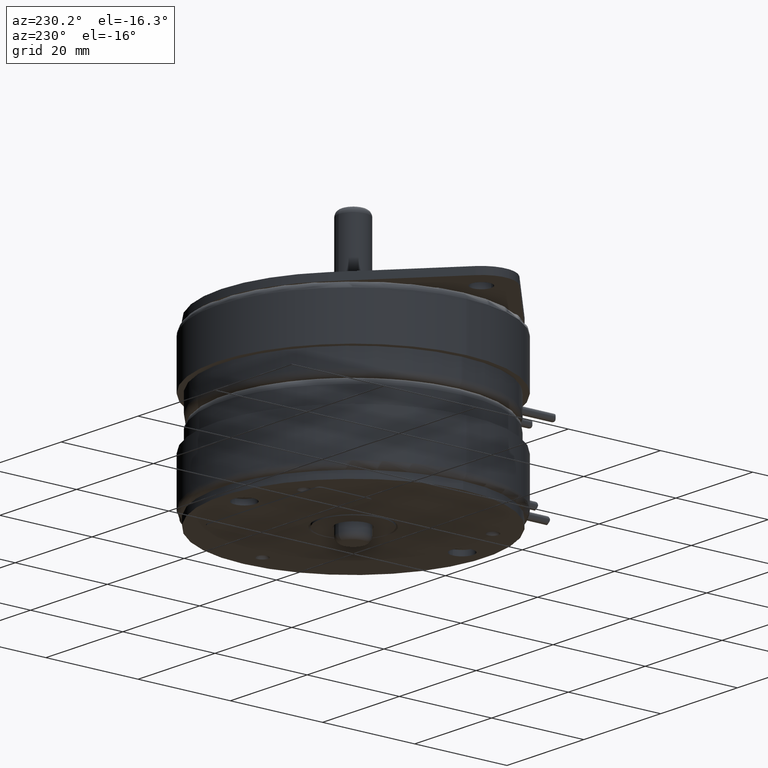
[diagram: clean part render]
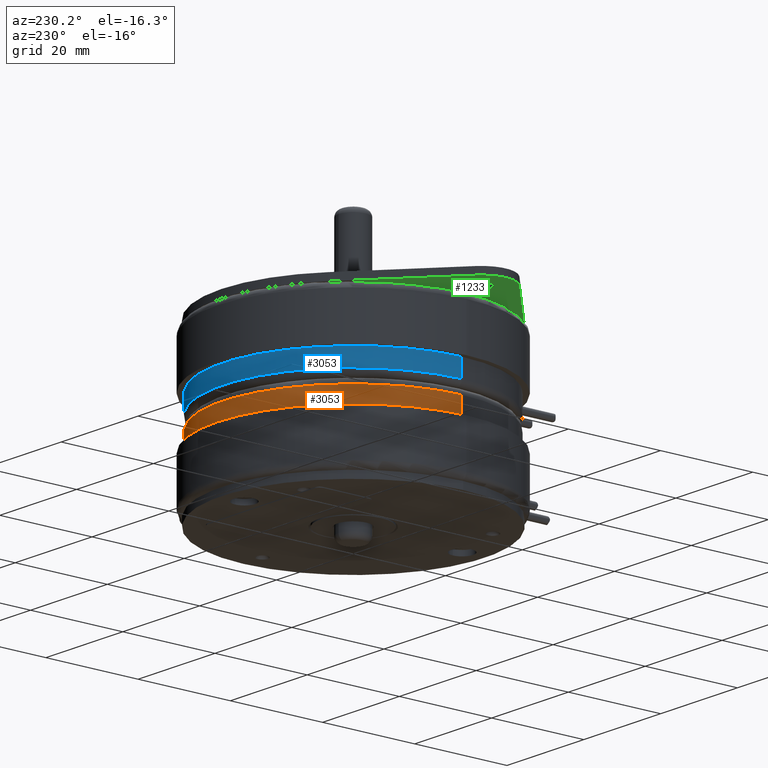
[diagram: same view with three faces highlighted in distinct colors, each labeled with its STEP entity id]
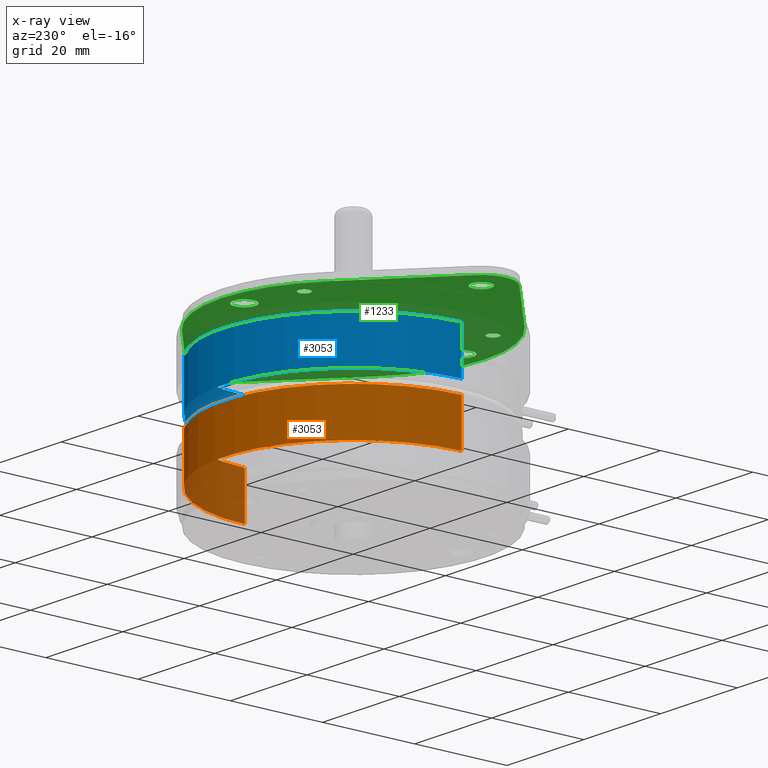
[diagram: x-ray of the same camera — body ghosted, the three highlighted faces saturated]
A machine part, auxiliary view with three faces highlighted in distinct colors.
The next image is the same camera in x-ray (body ghosted, the three faces saturated) — at least one of them is partly hidden behind the body in this view.
Their STEP definitions:

[orange] entity #3053 — the highlighted cylindrical surface (partial cylindrical patch) has radius 28.2575 mm, axis along (0, 0, -1).
#2540=CARTESIAN_POINT('',(-5.5E-2,0.E0,0.E0));
#2541=DIRECTION('',(-1.E0,0.E0,0.E0));
#2542=DIRECTION('',(0.E0,0.E0,1.E0));
#2543=AXIS2_PLACEMENT_3D('',#2540,#2541,#2542);
#2605=DIRECTION('',(1.E0,0.E0,0.E0));
#2606=VECTOR('',#2605,3.85E-1);
#2607=CARTESIAN_POINT('',(-4.4E-1,0.E0,1.1125E0));
#2608=LINE('',#2607,#2606);
#2686=CARTESIAN_POINT('',(-4.4E-1,0.E0,0.E0));
#2687=DIRECTION('',(1.E0,0.E0,0.E0));
#2688=DIRECTION('',(0.E0,0.E0,-1.E0));
#2689=AXIS2_PLACEMENT_3D('',#2686,#2687,#2688);
#2700=DIRECTION('',(1.E0,0.E0,0.E0));
#2701=VECTOR('',#2700,3.85E-1);
#2702=CARTESIAN_POINT('',(-4.4E-1,0.E0,-1.1125E0));
#2703=LINE('',#2702,#2701);
#2806=CARTESIAN_POINT('',(-5.5E-2,0.E0,-1.1125E0));
#2808=VERTEX_POINT('',#2806);
#2812=CARTESIAN_POINT('',(-5.5E-2,0.E0,1.1125E0));
#2813=VERTEX_POINT('',#2812);
#2822=CARTESIAN_POINT('',(-4.4E-1,0.E0,1.1125E0));
#2823=VERTEX_POINT('',#2822);
#2824=CARTESIAN_POINT('',(-4.4E-1,0.E0,-1.1125E0));
#2825=VERTEX_POINT('',#2824);
#3042=CARTESIAN_POINT('',(2.2E-2,0.E0,0.E0));
#3043=DIRECTION('',(-1.E0,0.E0,0.E0));
#3044=DIRECTION('',(0.E0,0.E0,-1.E0));
#3045=AXIS2_PLACEMENT_3D('',#3042,#3043,#3044);
#3046=CYLINDRICAL_SURFACE('',#3045,1.1125E0);
#3047=ORIENTED_EDGE('',*,*,#2906,.T.);
#3048=ORIENTED_EDGE('',*,*,#2869,.F.);
#3049=ORIENTED_EDGE('',*,*,#2903,.F.);
#3050=ORIENTED_EDGE('',*,*,#3032,.F.);
#3051=EDGE_LOOP('',(#3047,#3048,#3049,#3050));
#3052=FACE_OUTER_BOUND('',#3051,.F.);
#3053=ADVANCED_FACE('',(#3052),#3046,.T.);
#2544=CIRCLE('',#2543,1.1125E0);
#2690=CIRCLE('',#2689,1.1125E0);
#2869=EDGE_CURVE('',#2813,#2808,#2544,.T.);
#2903=EDGE_CURVE('',#2823,#2813,#2608,.T.);
#2906=EDGE_CURVE('',#2825,#2808,#2703,.T.);
#3032=EDGE_CURVE('',#2825,#2823,#2690,.T.);

[blue] entity #3053 — the highlighted cylindrical surface (partial cylindrical patch) has radius 28.2575 mm, axis along (0, 0, 1).
#2540=CARTESIAN_POINT('',(-5.5E-2,0.E0,0.E0));
#2541=DIRECTION('',(-1.E0,0.E0,0.E0));
#2542=DIRECTION('',(0.E0,0.E0,1.E0));
#2543=AXIS2_PLACEMENT_3D('',#2540,#2541,#2542);
#2605=DIRECTION('',(1.E0,0.E0,0.E0));
#2606=VECTOR('',#2605,3.85E-1);
#2607=CARTESIAN_POINT('',(-4.4E-1,0.E0,1.1125E0));
#2608=LINE('',#2607,#2606);
#2686=CARTESIAN_POINT('',(-4.4E-1,0.E0,0.E0));
#2687=DIRECTION('',(1.E0,0.E0,0.E0));
#2688=DIRECTION('',(0.E0,0.E0,-1.E0));
#2689=AXIS2_PLACEMENT_3D('',#2686,#2687,#2688);
#2700=DIRECTION('',(1.E0,0.E0,0.E0));
#2701=VECTOR('',#2700,3.85E-1);
#2702=CARTESIAN_POINT('',(-4.4E-1,0.E0,-1.1125E0));
#2703=LINE('',#2702,#2701);
#2806=CARTESIAN_POINT('',(-5.5E-2,0.E0,-1.1125E0));
#2808=VERTEX_POINT('',#2806);
#2812=CARTESIAN_POINT('',(-5.5E-2,0.E0,1.1125E0));
#2813=VERTEX_POINT('',#2812);
#2822=CARTESIAN_POINT('',(-4.4E-1,0.E0,1.1125E0));
#2823=VERTEX_POINT('',#2822);
#2824=CARTESIAN_POINT('',(-4.4E-1,0.E0,-1.1125E0));
#2825=VERTEX_POINT('',#2824);
#3042=CARTESIAN_POINT('',(2.2E-2,0.E0,0.E0));
#3043=DIRECTION('',(-1.E0,0.E0,0.E0));
#3044=DIRECTION('',(0.E0,0.E0,-1.E0));
#3045=AXIS2_PLACEMENT_3D('',#3042,#3043,#3044);
#3046=CYLINDRICAL_SURFACE('',#3045,1.1125E0);
#3047=ORIENTED_EDGE('',*,*,#2906,.T.);
#3048=ORIENTED_EDGE('',*,*,#2869,.F.);
#3049=ORIENTED_EDGE('',*,*,#2903,.F.);
#3050=ORIENTED_EDGE('',*,*,#3032,.F.);
#3051=EDGE_LOOP('',(#3047,#3048,#3049,#3050));
#3052=FACE_OUTER_BOUND('',#3051,.F.);
#3053=ADVANCED_FACE('',(#3052),#3046,.T.);
#2544=CIRCLE('',#2543,1.1125E0);
#2690=CIRCLE('',#2689,1.1125E0);
#2869=EDGE_CURVE('',#2813,#2808,#2544,.T.);
#2903=EDGE_CURVE('',#2823,#2813,#2608,.T.);
#2906=EDGE_CURVE('',#2825,#2808,#2703,.T.);
#3032=EDGE_CURVE('',#2825,#2823,#2690,.T.);

[green] entity #1233 — the highlighted planar face has unit normal (0, 0, -1).
#658=DIRECTION('',(-6.666666666667E-1,-7.453559924999E-1,0.E0));
#659=VECTOR('',#658,9.782797401541E-1);
#660=CARTESIAN_POINT('',(8.385254915615E-1,-7.500000000013E-1,0.E0));
#661=LINE('',#660,#659);
#662=CARTESIAN_POINT('',(0.E0,-1.3125E0,0.E0));
#663=DIRECTION('',(0.E0,0.E0,-1.E0));
#664=DIRECTION('',(7.453559925052E-1,-6.666666666607E-1,0.E0));
#665=AXIS2_PLACEMENT_3D('',#662,#663,#664);
#667=DIRECTION('',(-6.666666666667E-1,7.453559924999E-1,0.E0));
#668=VECTOR('',#667,9.782797401566E-1);
#669=CARTESIAN_POINT('',(-1.863389981247E-1,-1.479166666667E0,0.E0));
#670=LINE('',#669,#668);
#671=CARTESIAN_POINT('',(0.E0,0.E0,0.E0));
#672=DIRECTION('',(0.E0,0.E0,-1.E0));
#673=DIRECTION('',(-7.453559925001E-1,-6.666666666665E-1,0.E0));
#674=AXIS2_PLACEMENT_3D('',#671,#672,#673);
#676=CARTESIAN_POINT('',(0.E0,0.E0,0.E0));
#677=DIRECTION('',(0.E0,0.E0,-1.E0));
#678=DIRECTION('',(-1.E0,0.E0,0.E0));
#679=AXIS2_PLACEMENT_3D('',#676,#677,#678);
#681=DIRECTION('',(6.666666666667E-1,7.453559924999E-1,0.E0));
#682=VECTOR('',#681,9.782797401541E-1);
#683=CARTESIAN_POINT('',(-8.385254915615E-1,7.500000000013E-1,0.E0));
#684=LINE('',#683,#682);
#685=CARTESIAN_POINT('',(0.E0,1.3125E0,0.E0));
#686=DIRECTION('',(0.E0,0.E0,-1.E0));
#687=DIRECTION('',(-7.453559925052E-1,6.666666666607E-1,0.E0));
#688=AXIS2_PLACEMENT_3D('',#685,#686,#687);
#690=DIRECTION('',(6.666666666667E-1,-7.453559924999E-1,0.E0));
#691=VECTOR('',#690,9.782797401566E-1);
#692=CARTESIAN_POINT('',(1.863389981247E-1,1.479166666667E0,0.E0));
#693=LINE('',#692,#691);
#694=CARTESIAN_POINT('',(0.E0,0.E0,0.E0));
#695=DIRECTION('',(0.E0,0.E0,-1.E0));
#696=DIRECTION('',(7.453559925001E-1,6.666666666665E-1,0.E0));
#697=AXIS2_PLACEMENT_3D('',#694,#695,#696);
#699=CARTESIAN_POINT('',(0.E0,0.E0,0.E0));
#700=DIRECTION('',(0.E0,0.E0,-1.E0));
#701=DIRECTION('',(1.E0,0.E0,0.E0));
#702=AXIS2_PLACEMENT_3D('',#699,#700,#701);
#704=CARTESIAN_POINT('',(-9.3E-1,0.E0,0.E0));
#705=DIRECTION('',(0.E0,0.E0,1.E0));
#706=DIRECTION('',(-1.E0,0.E0,0.E0));
#707=AXIS2_PLACEMENT_3D('',#704,#705,#706);
#709=CARTESIAN_POINT('',(-9.3E-1,0.E0,0.E0));
#710=DIRECTION('',(0.E0,0.E0,1.E0));
#711=DIRECTION('',(1.E0,0.E0,0.E0));
#712=AXIS2_PLACEMENT_3D('',#709,#710,#711);
#714=CARTESIAN_POINT('',(9.3E-1,0.E0,0.E0));
#715=DIRECTION('',(0.E0,0.E0,1.E0));
#716=DIRECTION('',(-1.E0,0.E0,0.E0));
#717=AXIS2_PLACEMENT_3D('',#714,#715,#716);
#719=CARTESIAN_POINT('',(9.3E-1,0.E0,0.E0));
#720=DIRECTION('',(0.E0,0.E0,1.E0));
#721=DIRECTION('',(1.E0,0.E0,0.E0));
#722=AXIS2_PLACEMENT_3D('',#719,#720,#721);
#724=CARTESIAN_POINT('',(0.E0,-1.3125E0,0.E0));
#725=DIRECTION('',(0.E0,0.E0,1.E0));
#726=DIRECTION('',(-1.E0,0.E0,0.E0));
#727=AXIS2_PLACEMENT_3D('',#724,#725,#726);
#729=CARTESIAN_POINT('',(0.E0,-1.3125E0,0.E0));
#730=DIRECTION('',(0.E0,0.E0,1.E0));
#731=DIRECTION('',(1.E0,0.E0,0.E0));
#732=AXIS2_PLACEMENT_3D('',#729,#730,#731);
#734=CARTESIAN_POINT('',(0.E0,1.3125E0,0.E0));
#735=DIRECTION('',(0.E0,0.E0,1.E0));
#736=DIRECTION('',(-1.E0,0.E0,0.E0));
#737=AXIS2_PLACEMENT_3D('',#734,#735,#736);
#739=CARTESIAN_POINT('',(0.E0,1.3125E0,0.E0));
#740=DIRECTION('',(0.E0,0.E0,1.E0));
#741=DIRECTION('',(1.E0,0.E0,0.E0));
#742=AXIS2_PLACEMENT_3D('',#739,#740,#741);
#744=CARTESIAN_POINT('',(0.E0,0.E0,0.E0));
#745=DIRECTION('',(0.E0,0.E0,1.E0));
#746=DIRECTION('',(-1.E0,0.E0,0.E0));
#747=AXIS2_PLACEMENT_3D('',#744,#745,#746);
#749=CARTESIAN_POINT('',(0.E0,0.E0,0.E0));
#750=DIRECTION('',(0.E0,0.E0,1.E0));
#751=DIRECTION('',(1.E0,0.E0,0.E0));
#752=AXIS2_PLACEMENT_3D('',#749,#750,#751);
#754=CARTESIAN_POINT('',(0.E0,9.3E-1,0.E0));
#755=DIRECTION('',(0.E0,0.E0,1.E0));
#756=DIRECTION('',(0.E0,1.E0,0.E0));
#757=AXIS2_PLACEMENT_3D('',#754,#755,#756);
#759=CARTESIAN_POINT('',(0.E0,9.3E-1,0.E0));
#760=DIRECTION('',(0.E0,0.E0,1.E0));
#761=DIRECTION('',(0.E0,-1.E0,0.E0));
#762=AXIS2_PLACEMENT_3D('',#759,#760,#761);
#764=CARTESIAN_POINT('',(-8.054036255195E-1,-4.65E-1,0.E0));
#765=DIRECTION('',(0.E0,0.E0,1.E0));
#766=DIRECTION('',(-8.660254037844E-1,-5.E-1,0.E0));
#767=AXIS2_PLACEMENT_3D('',#764,#765,#766);
#769=CARTESIAN_POINT('',(-8.054036255195E-1,-4.65E-1,0.E0));
#770=DIRECTION('',(0.E0,0.E0,1.E0));
#771=DIRECTION('',(8.660254037844E-1,5.E-1,0.E0));
#772=AXIS2_PLACEMENT_3D('',#769,#770,#771);
#774=CARTESIAN_POINT('',(8.054036255195E-1,-4.65E-1,0.E0));
#775=DIRECTION('',(0.E0,0.E0,1.E0));
#776=DIRECTION('',(8.660254037844E-1,-5.E-1,0.E0));
#777=AXIS2_PLACEMENT_3D('',#774,#775,#776);
#779=CARTESIAN_POINT('',(8.054036255195E-1,-4.65E-1,0.E0));
#780=DIRECTION('',(0.E0,0.E0,1.E0));
#781=DIRECTION('',(-8.660254037844E-1,5.E-1,0.E0));
#782=AXIS2_PLACEMENT_3D('',#779,#780,#781);
#1042=CARTESIAN_POINT('',(8.385254915615E-1,-7.500000000013E-1,0.E0));
#1043=CARTESIAN_POINT('',(1.863389981254E-1,-1.479166666666E0,0.E0));
#1044=VERTEX_POINT('',#1042);
#1045=VERTEX_POINT('',#1043);
#1046=CARTESIAN_POINT('',(-1.863389981246E-1,-1.479166666667E0,0.E0));
#1047=VERTEX_POINT('',#1046);
#1048=CARTESIAN_POINT('',(-8.385254915625E-1,-7.499999999999E-1,0.E0));
#1049=VERTEX_POINT('',#1048);
#1050=CARTESIAN_POINT('',(-1.125E0,0.E0,0.E0));
#1051=CARTESIAN_POINT('',(-8.385254915593E-1,7.500000000035E-1,0.E0));
#1052=VERTEX_POINT('',#1050);
#1053=VERTEX_POINT('',#1051);
#1054=CARTESIAN_POINT('',(-1.863389981254E-1,1.479166666666E0,0.E0));
#1055=VERTEX_POINT('',#1054);
#1056=CARTESIAN_POINT('',(1.863389981246E-1,1.479166666667E0,0.E0));
#1057=VERTEX_POINT('',#1056);
#1058=CARTESIAN_POINT('',(8.385254915625E-1,7.499999999999E-1,0.E0));
#1059=VERTEX_POINT('',#1058);
#1060=CARTESIAN_POINT('',(1.125E0,0.E0,0.E0));
#1061=VERTEX_POINT('',#1060);
#1062=CARTESIAN_POINT('',(-1.0235E0,0.E0,0.E0));
#1063=CARTESIAN_POINT('',(-8.365E-1,0.E0,0.E0));
#1064=VERTEX_POINT('',#1062);
#1065=VERTEX_POINT('',#1063);
#1066=CARTESIAN_POINT('',(8.365E-1,0.E0,0.E0));
#1067=CARTESIAN_POINT('',(1.0235E0,0.E0,0.E0));
#1068=VERTEX_POINT('',#1066);
#1069=VERTEX_POINT('',#1067);
#1070=CARTESIAN_POINT('',(-8.45E-2,-1.3125E0,0.E0));
#1071=CARTESIAN_POINT('',(8.45E-2,-1.3125E0,0.E0));
#1072=VERTEX_POINT('',#1070);
#1073=VERTEX_POINT('',#1071);
#1074=CARTESIAN_POINT('',(-8.45E-2,1.3125E0,0.E0));
#1075=CARTESIAN_POINT('',(8.45E-2,1.3125E0,0.E0));
#1076=VERTEX_POINT('',#1074);
#1077=VERTEX_POINT('',#1075);
#1078=CARTESIAN_POINT('',(-2.8025E-1,0.E0,0.E0));
#1079=CARTESIAN_POINT('',(2.8025E-1,0.E0,0.E0));
#1080=VERTEX_POINT('',#1078);
#1081=VERTEX_POINT('',#1079);
#1082=CARTESIAN_POINT('',(0.E0,9.789897948557E-1,0.E0));
#1083=CARTESIAN_POINT('',(0.E0,8.810102051443E-1,0.E0));
#1084=VERTEX_POINT('',#1082);
#1085=VERTEX_POINT('',#1083);
#1086=CARTESIAN_POINT('',(-8.478300323907E-1,-4.894948974278E-1,0.E0));
#1087=CARTESIAN_POINT('',(-7.629772186483E-1,-4.405051025722E-1,0.E0));
#1088=VERTEX_POINT('',#1086);
#1089=VERTEX_POINT('',#1087);
#1090=CARTESIAN_POINT('',(8.478300323907E-1,-4.894948974278E-1,0.E0));
#1091=CARTESIAN_POINT('',(7.629772186483E-1,-4.405051025722E-1,0.E0));
#1092=VERTEX_POINT('',#1090);
#1093=VERTEX_POINT('',#1091);
#1158=CARTESIAN_POINT('',(0.E0,0.E0,0.E0));
#1159=DIRECTION('',(0.E0,0.E0,1.E0));
#1160=DIRECTION('',(1.E0,0.E0,0.E0));
#1161=AXIS2_PLACEMENT_3D('',#1158,#1159,#1160);
#1162=PLANE('',#1161);
#1164=ORIENTED_EDGE('',*,*,#1163,.T.);
#1166=ORIENTED_EDGE('',*,*,#1165,.T.);
#1168=ORIENTED_EDGE('',*,*,#1167,.T.);
#1170=ORIENTED_EDGE('',*,*,#1169,.T.);
#1172=ORIENTED_EDGE('',*,*,#1171,.T.);
#1174=ORIENTED_EDGE('',*,*,#1173,.T.);
#1176=ORIENTED_EDGE('',*,*,#1175,.T.);
#1178=ORIENTED_EDGE('',*,*,#1177,.T.);
#1180=ORIENTED_EDGE('',*,*,#1179,.T.);
#1182=ORIENTED_EDGE('',*,*,#1181,.T.);
#1183=EDGE_LOOP('',(#1164,#1166,#1168,#1170,#1172,#1174,#1176,#1178,#1180,
#1182));
#1184=FACE_OUTER_BOUND('',#1183,.F.);
#1186=ORIENTED_EDGE('',*,*,#1185,.T.);
#1188=ORIENTED_EDGE('',*,*,#1187,.T.);
#1189=EDGE_LOOP('',(#1186,#1188));
#1190=FACE_BOUND('',#1189,.F.);
#1192=ORIENTED_EDGE('',*,*,#1191,.T.);
#1194=ORIENTED_EDGE('',*,*,#1193,.T.);
#1195=EDGE_LOOP('',(#1192,#1194));
#1196=FACE_BOUND('',#1195,.F.);
#1198=ORIENTED_EDGE('',*,*,#1197,.T.);
#1200=ORIENTED_EDGE('',*,*,#1199,.T.);
#1201=EDGE_LOOP('',(#1198,#1200));
#1202=FACE_BOUND('',#1201,.F.);
#1204=ORIENTED_EDGE('',*,*,#1203,.T.);
#1206=ORIENTED_EDGE('',*,*,#1205,.T.);
#1207=EDGE_LOOP('',(#1204,#1206));
#1208=FACE_BOUND('',#1207,.F.);
#1210=ORIENTED_EDGE('',*,*,#1209,.T.);
#1212=ORIENTED_EDGE('',*,*,#1211,.T.);
#1213=EDGE_LOOP('',(#1210,#1212));
#1214=FACE_BOUND('',#1213,.F.);
#1216=ORIENTED_EDGE('',*,*,#1215,.T.);
#1218=ORIENTED_EDGE('',*,*,#1217,.T.);
#1219=EDGE_LOOP('',(#1216,#1218));
#1220=FACE_BOUND('',#1219,.F.);
#1222=ORIENTED_EDGE('',*,*,#1221,.T.);
#1224=ORIENTED_EDGE('',*,*,#1223,.T.);
#1225=EDGE_LOOP('',(#1222,#1224));
#1226=FACE_BOUND('',#1225,.F.);
#1228=ORIENTED_EDGE('',*,*,#1227,.T.);
#1230=ORIENTED_EDGE('',*,*,#1229,.T.);
#1231=EDGE_LOOP('',(#1228,#1230));
#1232=FACE_BOUND('',#1231,.F.);
#1233=ADVANCED_FACE('',(#1184,#1190,#1196,#1202,#1208,#1214,#1220,#1226,#1232),
#1162,.T.);
#666=CIRCLE('',#665,2.5E-1);
#675=CIRCLE('',#674,1.125E0);
#680=CIRCLE('',#679,1.125E0);
#689=CIRCLE('',#688,2.5E-1);
#698=CIRCLE('',#697,1.125E0);
#703=CIRCLE('',#702,1.125E0);
#708=CIRCLE('',#707,9.35E-2);
#713=CIRCLE('',#712,9.35E-2);
#718=CIRCLE('',#717,9.35E-2);
#723=CIRCLE('',#722,9.35E-2);
#728=CIRCLE('',#727,8.45E-2);
#733=CIRCLE('',#732,8.45E-2);
#738=CIRCLE('',#737,8.45E-2);
#743=CIRCLE('',#742,8.45E-2);
#748=CIRCLE('',#747,2.8025E-1);
#753=CIRCLE('',#752,2.8025E-1);
#758=CIRCLE('',#757,4.898979485566E-2);
#763=CIRCLE('',#762,4.898979485566E-2);
#768=CIRCLE('',#767,4.898979485566E-2);
#773=CIRCLE('',#772,4.898979485566E-2);
#778=CIRCLE('',#777,4.898979485566E-2);
#783=CIRCLE('',#782,4.898979485566E-2);
#1163=EDGE_CURVE('',#1044,#1045,#661,.T.);
#1165=EDGE_CURVE('',#1045,#1047,#666,.T.);
#1167=EDGE_CURVE('',#1047,#1049,#670,.T.);
#1169=EDGE_CURVE('',#1049,#1052,#675,.T.);
#1171=EDGE_CURVE('',#1052,#1053,#680,.T.);
#1173=EDGE_CURVE('',#1053,#1055,#684,.T.);
#1175=EDGE_CURVE('',#1055,#1057,#689,.T.);
#1177=EDGE_CURVE('',#1057,#1059,#693,.T.);
#1179=EDGE_CURVE('',#1059,#1061,#698,.T.);
#1181=EDGE_CURVE('',#1061,#1044,#703,.T.);
#1185=EDGE_CURVE('',#1064,#1065,#708,.T.);
#1187=EDGE_CURVE('',#1065,#1064,#713,.T.);
#1191=EDGE_CURVE('',#1068,#1069,#718,.T.);
#1193=EDGE_CURVE('',#1069,#1068,#723,.T.);
#1197=EDGE_CURVE('',#1072,#1073,#728,.T.);
#1199=EDGE_CURVE('',#1073,#1072,#733,.T.);
#1203=EDGE_CURVE('',#1076,#1077,#738,.T.);
#1205=EDGE_CURVE('',#1077,#1076,#743,.T.);
#1209=EDGE_CURVE('',#1080,#1081,#748,.T.);
#1211=EDGE_CURVE('',#1081,#1080,#753,.T.);
#1215=EDGE_CURVE('',#1084,#1085,#758,.T.);
#1217=EDGE_CURVE('',#1085,#1084,#763,.T.);
#1221=EDGE_CURVE('',#1088,#1089,#768,.T.);
#1223=EDGE_CURVE('',#1089,#1088,#773,.T.);
#1227=EDGE_CURVE('',#1092,#1093,#778,.T.);
#1229=EDGE_CURVE('',#1093,#1092,#783,.T.);